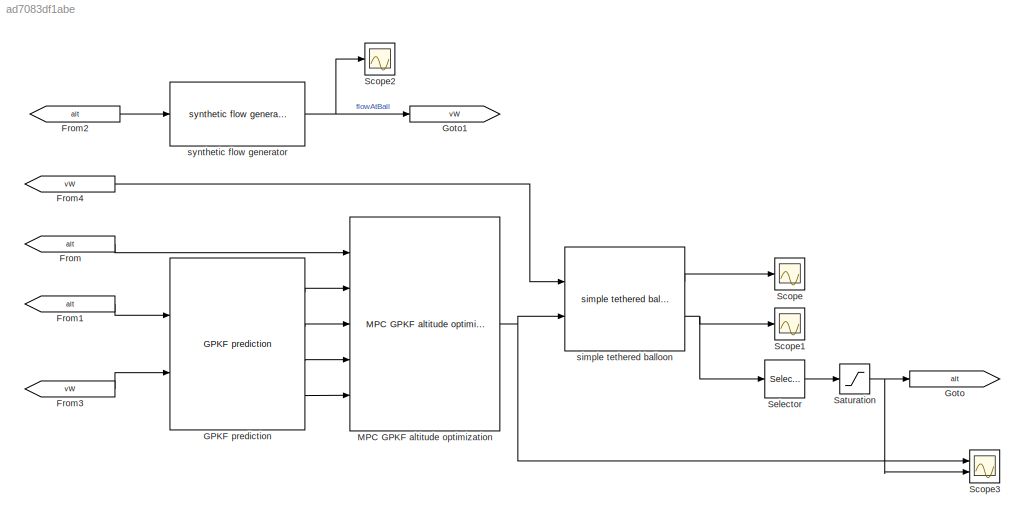
MODEL slx_ad7083df1abe
KIND model
CONFIG AbsTol = auto
CONFIG EnableMultiTasking = off
CONFIG FixedStep = auto
CONFIG MaxStep = auto
CONFIG MinStep = auto
CONFIG RelTol = 1e-3
CONFIG SampleTimeConstraint = Unconstrained
CONFIG Solver = VariableStepAuto
CONFIG SolverName = VariableStepAuto
CONFIG StartTime = 0.0
CONFIG StopTime = simTime
BLOCK [From] From
  GotoTag = alt
BLOCK [From] From1
  GotoTag = alt
BLOCK [From] From2
  GotoTag = alt
BLOCK [From] From3
  GotoTag = vW
BLOCK [From] From4
  GotoTag = vW
BLOCK [Reference] GPKF prediction  REF=kfgpPrediction/GPKF prediction
  Ports = [2, 4]
  SourceBlock = kfgpPrediction/GPKF prediction
BLOCK [Goto] Goto
  GotoTag = alt
BLOCK [Goto] Goto1
  GotoTag = vW
BLOCK [Reference] MPC GPKF altitude optimization  REF=mpcgpkf_altitudeOptimization/MPC GPKF altitude optimization
  Ports = [5, 1]
  SourceBlock = mpcgpkf_altitudeOptimization/MPC GPKF altitude optimization
BLOCK [Saturate] Saturation
  LowerLimit = minAlt
  UpperLimit = maxAlt
BLOCK [Scope] Scope
  Floating = off
  NumInputPorts = 1
  Ports = [1]
  ScopeSpecificationString = Simulink.scopes.TimeScopeBlockCfg('CurrentConfiguration', extmgr.ConfigurationSet(extmgr.Configuration('Core','General UI',true),extmgr.Configuration('Core','Source UI',true),extmgr.Configuration('Sources','WiredSimulink',true),extmgr.Configuration('Visuals','Time Domain',true,'SerializedDisplays',{struct('MinYLimReal','-68.90206','MaxYLimReal','22.23164','YLabelReal','','MinYLimMag','0.00000','Ma...<+1405ch>
BLOCK [Scope] Scope1
  Floating = off
  NumInputPorts = 1
  Ports = [1]
  ScopeSpecificationString = Simulink.scopes.TimeScopeBlockCfg('CurrentConfiguration', extmgr.ConfigurationSet(extmgr.Configuration('Core','General UI',true),extmgr.Configuration('Core','Source UI',true),extmgr.Configuration('Sources','WiredSimulink',true,'DataLoggingVariableName','ScopeData1'),extmgr.Configuration('Visuals','Time Domain',true,'SerializedDisplays',{struct('MinYLimReal','-178.88058','MaxYLimReal','1607.62099',...<+1500ch>
BLOCK [Scope] Scope2
  Floating = off
  NumInputPorts = 1
  Ports = [1]
  ScopeSpecificationString = Simulink.scopes.TimeScopeBlockCfg('CurrentConfiguration', extmgr.ConfigurationSet(extmgr.Configuration('Core','General UI',true),extmgr.Configuration('Core','Source UI',true),extmgr.Configuration('Sources','WiredSimulink',true,'DataLoggingVariableName','ScopeData2'),extmgr.Configuration('Visuals','Time Domain',true,'SerializedDisplays',{struct('MinYLimReal','7.79437','MaxYLimReal','9.81384','YLabe...<+1367ch>
BLOCK [Scope] Scope3
  Floating = off
  NumInputPorts = 2
  Ports = [2]
  ScopeSpecificationString = Simulink.scopes.TimeScopeBlockCfg('CurrentConfiguration', extmgr.ConfigurationSet(extmgr.Configuration('Core','General UI',true),extmgr.Configuration('Core','Source UI',true),extmgr.Configuration('Sources','WiredSimulink',true,'DataLoggingVariableName','ScopeData1'),extmgr.Configuration('Visuals','Time Domain',true,'SerializedDisplays',{struct('MinYLimReal','-12.5','MaxYLimReal','1112.5','YLabelRe...<+1441ch>
BLOCK [Selector] Selector
  IndexOptions = Index vector (dialog)
  Indices = 2
  InputPortWidth = 2
  OutputSizes = 1
  Ports = [1, 1]
BLOCK [Reference] simple tethered balloon  REF=simpleTetheredBalloon/simple tethered balloon
  Ports = [2, 2]
  SourceBlock = simpleTetheredBalloon/simple tethered balloon
BLOCK [Reference] synthetic flow generator  REF=syntheticFlowGenerator/synthetic flow generator
  Ports = [1, 1]
  SourceBlock = syntheticFlowGenerator/synthetic flow generator
LINE From1:1 -> GPKF prediction:1
LINE From2:1 -> synthetic flow generator:1
LINE From3:1 -> GPKF prediction:2
LINE From4:1 -> simple tethered balloon:1
LINE From:1 -> MPC GPKF altitude optimization:1
LINE GPKF prediction:1 -> MPC GPKF altitude optimization:2
LINE GPKF prediction:2 -> MPC GPKF altitude optimization:3
LINE GPKF prediction:3 -> MPC GPKF altitude optimization:4
LINE GPKF prediction:4 -> MPC GPKF altitude optimization:5
NET MPC GPKF altitude optimization:1 -> Scope3:1, simple tethered balloon:2
NET Saturation:1 -> Goto:1, Scope3:2
LINE Selector:1 -> Saturation:1
LINE simple tethered balloon:1 -> Scope:1
NET simple tethered balloon:2 -> Scope1:1, Selector:1
NET synthetic flow generator:1 -> Goto1:1, Scope2:1
note: NET lines group one-source signal fan-out (src -> all destinations, sorted); 1:1 wires keep LINE
